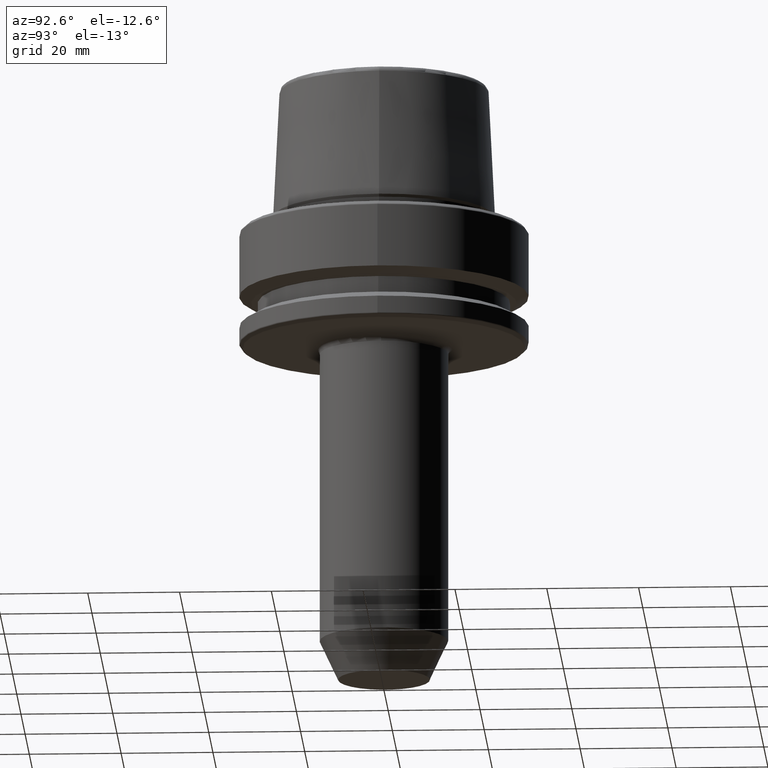
[diagram: clean part render]
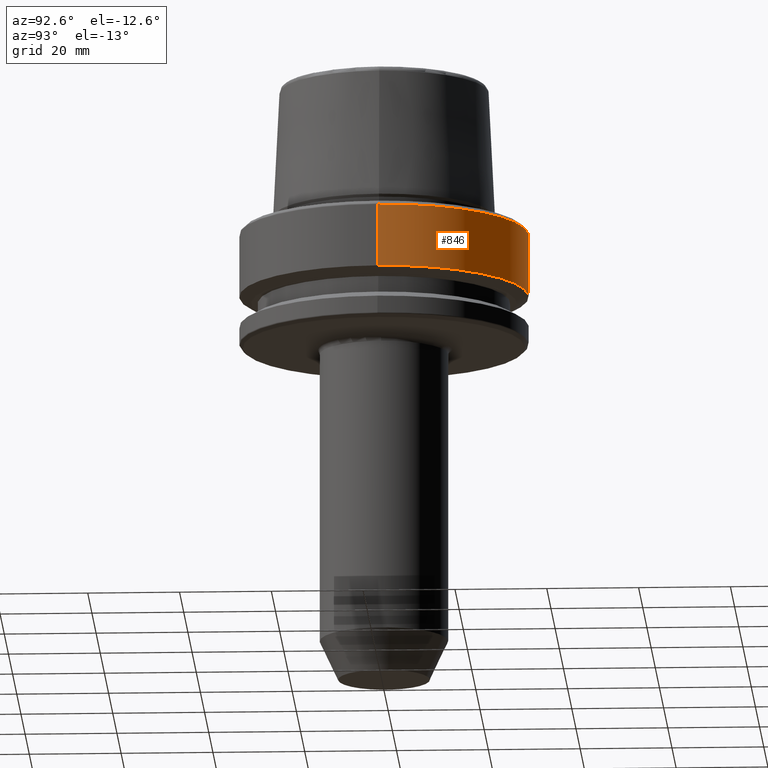
[diagram: same view with one face highlighted and labeled with its STEP entity id]
A machine part, auxiliary view. The second image highlights one B-rep face of the part: STEP entity #846.
In plain terms, the highlighted cylindrical surface (partial cylindrical patch) has radius 31.5 mm, axis along (-0, -0, 1).
Its self-contained STEP definition (entity closure, byte-faithful):
#23 = EDGE_LOOP ( 'NONE', ( #1268, #1239, #1120, #1021 ) ) ;
#126 = VECTOR ( 'NONE', #210, 1000.000000000000000 ) ;
#176 = CYLINDRICAL_SURFACE ( 'NONE', #588, 31.50000000000000000 ) ;
#196 = AXIS2_PLACEMENT_3D ( 'NONE', #287, #990, #392 ) ;
#210 = DIRECTION ( 'NONE',  ( -0.0000000000000000000, -0.0000000000000000000, 1.000000000000000000 ) ) ;
#228 = DIRECTION ( 'NONE',  ( 1.000000000000000000, 0.0000000000000000000, 0.0000000000000000000 ) ) ;
#238 = VECTOR ( 'NONE', #1114, 1000.000000000000000 ) ;
#239 = EDGE_CURVE ( 'NONE', #1056, #917, #670, .T. ) ;
#240 = CARTESIAN_POINT ( 'NONE',  ( -31.50000000000000000, 3.857637417314162700E-015, -0.9656854249492363700 ) ) ;
#287 = CARTESIAN_POINT ( 'NONE',  ( 0.0000000000000000000, 0.0000000000000000000, -14.62250092524070100 ) ) ;
#351 = CARTESIAN_POINT ( 'NONE',  ( -31.50000000000000000, 3.857637417314162700E-015, 78.96908074195309300 ) ) ;
#392 = DIRECTION ( 'NONE',  ( 1.000000000000000000, 0.0000000000000000000, 0.0000000000000000000 ) ) ;
#420 = EDGE_CURVE ( 'NONE', #1154, #917, #1184, .T. ) ;
#588 = AXIS2_PLACEMENT_3D ( 'NONE', #1029, #932, #228 ) ;
#621 = CARTESIAN_POINT ( 'NONE',  ( 31.50000000000000000, 0.0000000000000000000, -14.62250092524070100 ) ) ;
#655 = CARTESIAN_POINT ( 'NONE',  ( 0.0000000000000000000, 0.0000000000000000000, -0.9656854249492363700 ) ) ;
#670 = CIRCLE ( 'NONE', #741, 31.50000000000000000 ) ;
#741 = AXIS2_PLACEMENT_3D ( 'NONE', #655, #1124, #963 ) ;
#778 = LINE ( 'NONE', #1203, #238 ) ;
#816 = VERTEX_POINT ( 'NONE', #621 ) ;
#829 = EDGE_CURVE ( 'NONE', #816, #1056, #778, .T. ) ;
#846 = ADVANCED_FACE ( 'NONE', ( #1245 ), #176, .T. ) ;
#917 = VERTEX_POINT ( 'NONE', #240 ) ;
#932 = DIRECTION ( 'NONE',  ( -0.0000000000000000000, -0.0000000000000000000, 1.000000000000000000 ) ) ;
#963 = DIRECTION ( 'NONE',  ( 1.000000000000000000, 0.0000000000000000000, 0.0000000000000000000 ) ) ;
#990 = DIRECTION ( 'NONE',  ( -0.0000000000000000000, -0.0000000000000000000, 1.000000000000000000 ) ) ;
#1021 = ORIENTED_EDGE ( 'NONE', *, *, #829, .F. ) ;
#1029 = CARTESIAN_POINT ( 'NONE',  ( 0.0000000000000000000, 0.0000000000000000000, 78.96908074195309300 ) ) ;
#1056 = VERTEX_POINT ( 'NONE', #1147 ) ;
#1114 = DIRECTION ( 'NONE',  ( -0.0000000000000000000, -0.0000000000000000000, 1.000000000000000000 ) ) ;
#1120 = ORIENTED_EDGE ( 'NONE', *, *, #239, .F. ) ;
#1124 = DIRECTION ( 'NONE',  ( -0.0000000000000000000, -0.0000000000000000000, 1.000000000000000000 ) ) ;
#1139 = CIRCLE ( 'NONE', #196, 31.50000000000000000 ) ;
#1147 = CARTESIAN_POINT ( 'NONE',  ( 31.50000000000000000, 0.0000000000000000000, -0.9656854249492363700 ) ) ;
#1154 = VERTEX_POINT ( 'NONE', #1242 ) ;
#1184 = LINE ( 'NONE', #351, #126 ) ;
#1203 = CARTESIAN_POINT ( 'NONE',  ( 31.50000000000000000, 0.0000000000000000000, 78.96908074195309300 ) ) ;
#1206 = EDGE_CURVE ( 'NONE', #816, #1154, #1139, .T. ) ;
#1239 = ORIENTED_EDGE ( 'NONE', *, *, #420, .T. ) ;
#1242 = CARTESIAN_POINT ( 'NONE',  ( -31.50000000000000000, 3.857637417314162700E-015, -14.62250092524070100 ) ) ;
#1245 = FACE_OUTER_BOUND ( 'NONE', #23, .T. ) ;
#1268 = ORIENTED_EDGE ( 'NONE', *, *, #1206, .T. ) ;